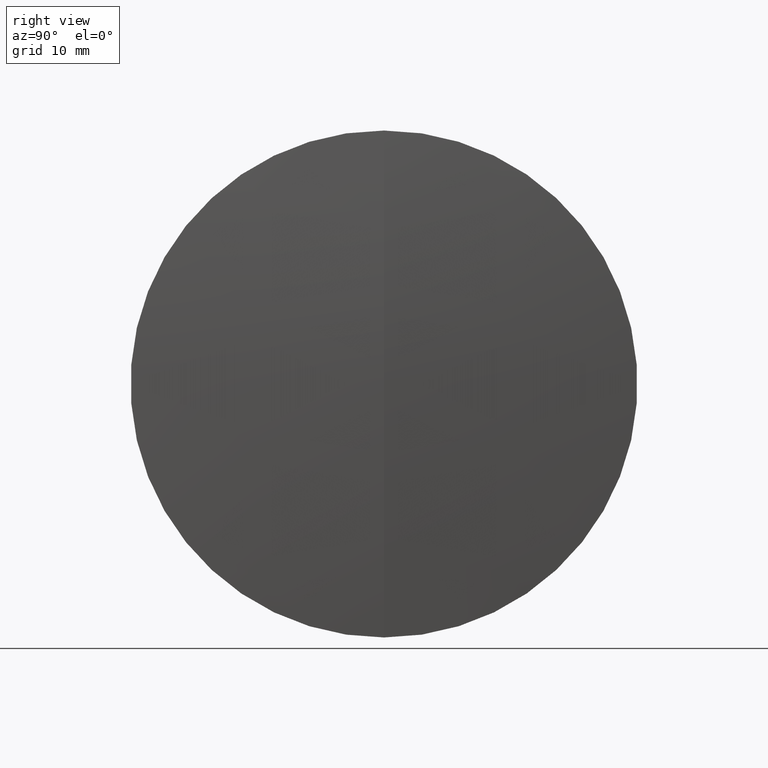
[diagram: clean part render]
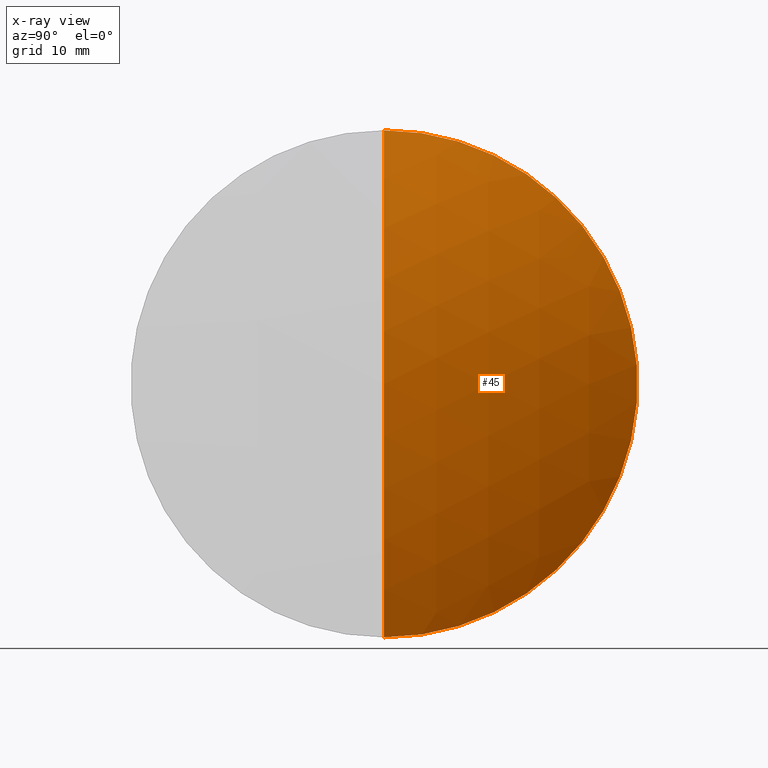
[diagram: x-ray — body ghosted, one internal face saturated and labeled with its STEP entity id]
A machine part, right view, then the same camera in x-ray: the body is ghosted and one INTERNAL B-rep face — a face not visible from any outside direction — is saturated and labeled: STEP entity #45.
In plain terms, the highlighted spherical surface has radius 56 mm.
Its self-contained STEP definition (entity closure, byte-faithful):
#17 = EDGE_LOOP ( 'NONE', ( #274, #175, #90 ) ) ;
#19 = DIRECTION ( 'NONE',  ( -0.0000000000000000000, 1.000000000000000000, 1.224646799147353200E-016 ) ) ;
#26 = VERTEX_POINT ( 'NONE', #129 ) ;
#27 = AXIS2_PLACEMENT_3D ( 'NONE', #178, #19, #202 ) ;
#28 = CARTESIAN_POINT ( 'NONE',  ( 536.0667524492886300, 3.110602869834276100E-015, -25.39999999999998800 ) ) ;
#43 = AXIS2_PLACEMENT_3D ( 'NONE', #149, #267, #92 ) ;
#45 = ADVANCED_FACE ( 'NONE', ( #95 ), #302, .T. ) ;
#60 = VERTEX_POINT ( 'NONE', #28 ) ;
#62 = EDGE_CURVE ( 'NONE', #26, #60, #123, .T. ) ;
#74 = CARTESIAN_POINT ( 'NONE',  ( 486.1584365089566400, 0.0000000000000000000, -9.937829943441984000E-015 ) ) ;
#90 = ORIENTED_EDGE ( 'NONE', *, *, #62, .F. ) ;
#92 = DIRECTION ( 'NONE',  ( 0.0000000000000000000, 0.0000000000000000000, -1.000000000000000000 ) ) ;
#95 = FACE_OUTER_BOUND ( 'NONE', #17, .T. ) ;
#123 = CIRCLE ( 'NONE', #156, 25.39999999999998800 ) ;
#126 = DIRECTION ( 'NONE',  ( -1.000000000000000000, -0.0000000000000000000, -0.0000000000000000000 ) ) ;
#129 = CARTESIAN_POINT ( 'NONE',  ( 536.0667524492886300, 0.0000000000000000000, 25.39999999999998800 ) ) ;
#130 = DIRECTION ( 'NONE',  ( 0.0000000000000000000, 1.000000000000000000, 0.0000000000000000000 ) ) ;
#135 = AXIS2_PLACEMENT_3D ( 'NONE', #74, #130, #246 ) ;
#137 = CARTESIAN_POINT ( 'NONE',  ( 542.1584365089565800, 0.0000000000000000000, -6.508818905829395900E-015 ) ) ;
#149 = CARTESIAN_POINT ( 'NONE',  ( 486.1584365089566400, 0.0000000000000000000, -9.937829943441984000E-015 ) ) ;
#153 = VERTEX_POINT ( 'NONE', #137 ) ;
#156 = AXIS2_PLACEMENT_3D ( 'NONE', #324, #126, #296 ) ;
#166 = CIRCLE ( 'NONE', #27, 55.99999999999998600 ) ;
#175 = ORIENTED_EDGE ( 'NONE', *, *, #289, .T. ) ;
#178 = CARTESIAN_POINT ( 'NONE',  ( 486.1584365089566400, 0.0000000000000000000, -9.937829943441984000E-015 ) ) ;
#202 = DIRECTION ( 'NONE',  ( 0.0000000000000000000, -1.224646799147353500E-016, 1.000000000000000000 ) ) ;
#244 = CIRCLE ( 'NONE', #43, 55.99999999999998600 ) ;
#246 = DIRECTION ( 'NONE',  ( 0.0000000000000000000, 0.0000000000000000000, 1.000000000000000000 ) ) ;
#267 = DIRECTION ( 'NONE',  ( 0.0000000000000000000, -1.000000000000000000, 0.0000000000000000000 ) ) ;
#273 = EDGE_CURVE ( 'NONE', #153, #26, #244, .T. ) ;
#274 = ORIENTED_EDGE ( 'NONE', *, *, #273, .F. ) ;
#289 = EDGE_CURVE ( 'NONE', #153, #60, #166, .T. ) ;
#296 = DIRECTION ( 'NONE',  ( 0.0000000000000000000, 0.0000000000000000000, 1.000000000000000000 ) ) ;
#302 = SPHERICAL_SURFACE ( 'NONE', #135, 55.99999999999998600 ) ;
#324 = CARTESIAN_POINT ( 'NONE',  ( 536.0667524492886300, 0.0000000000000000000, 0.0000000000000000000 ) ) ;